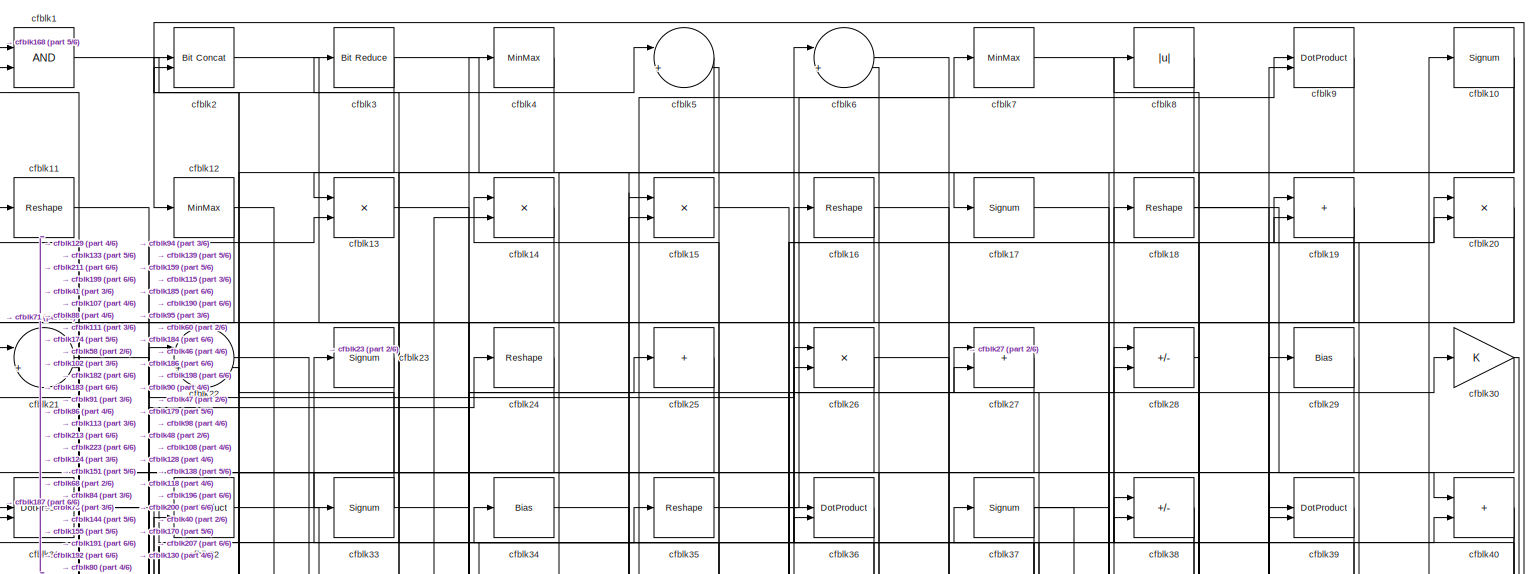
[diagram: root canvas - part 1/6, full width, top band]
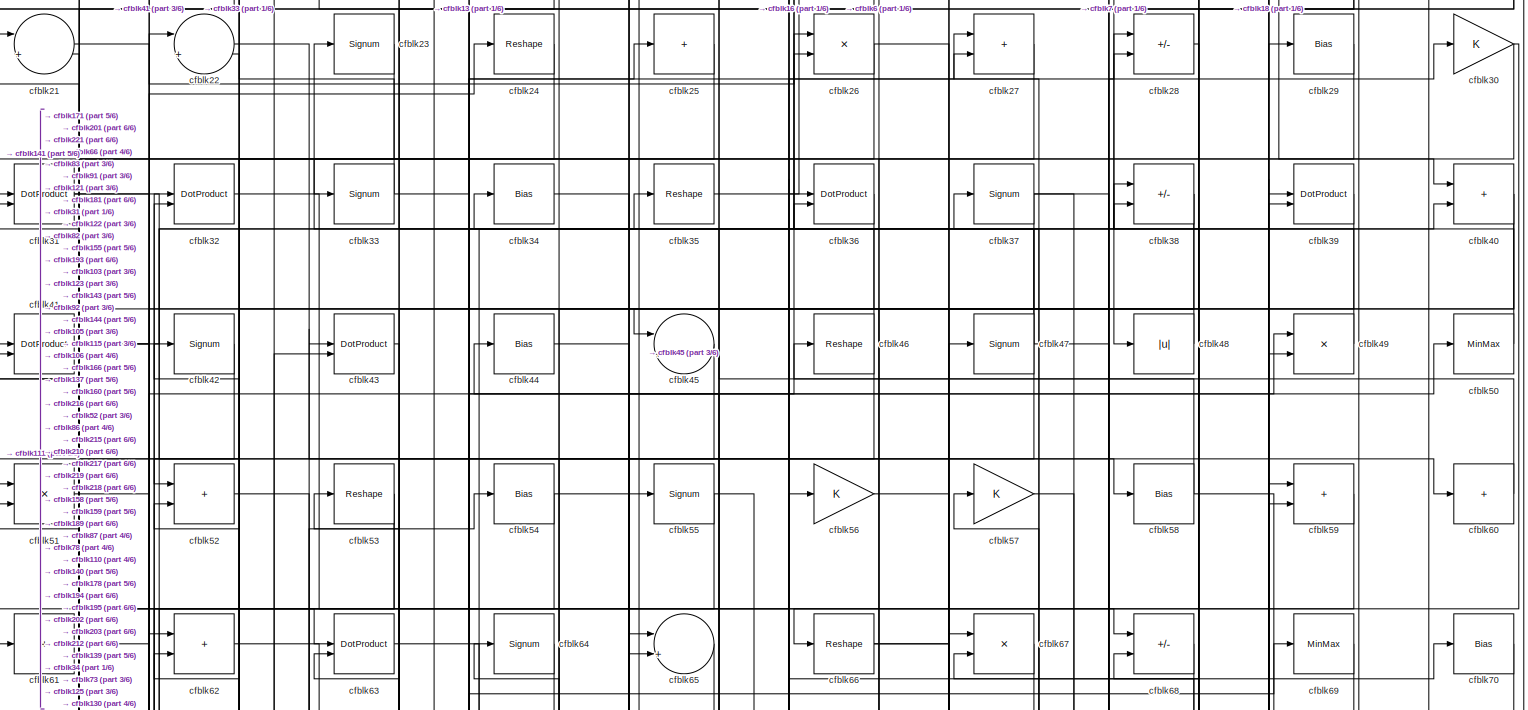
[diagram: root canvas - part 2/6, full width, top band]
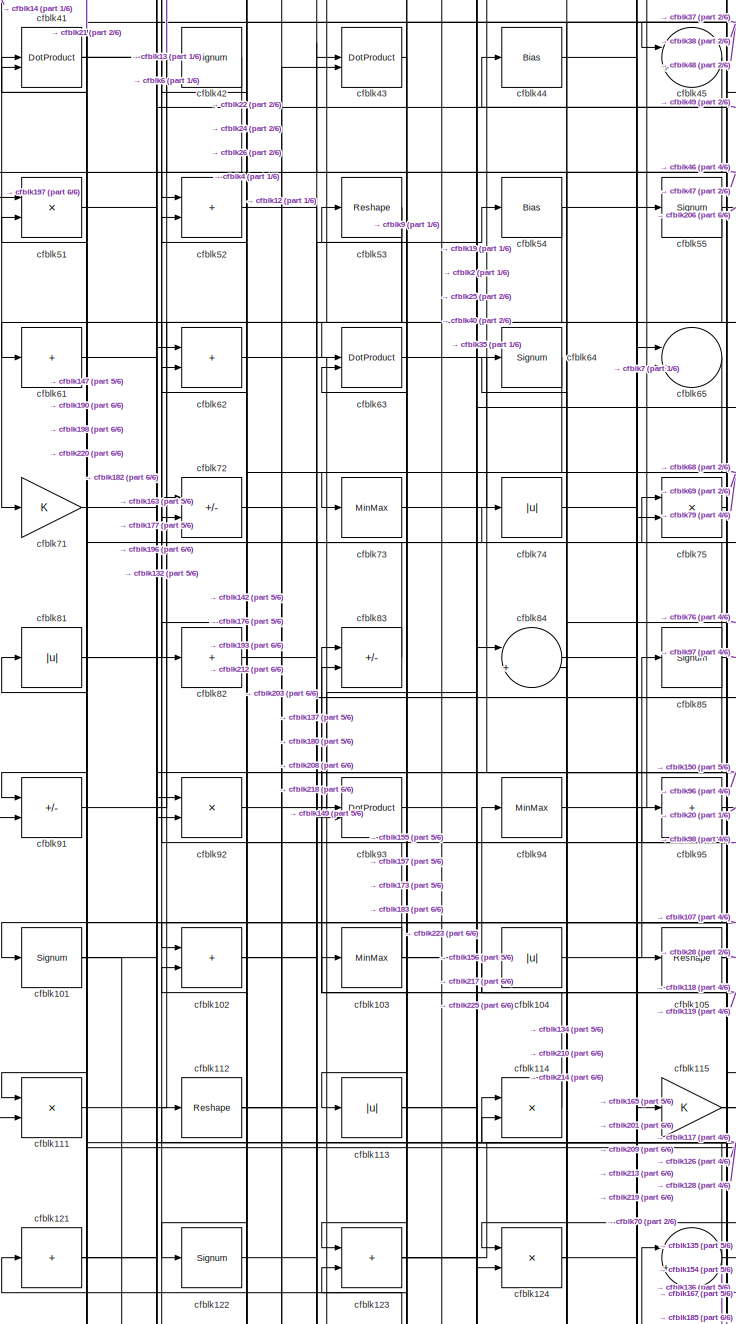
[diagram: root canvas - part 3/6, middle left region]
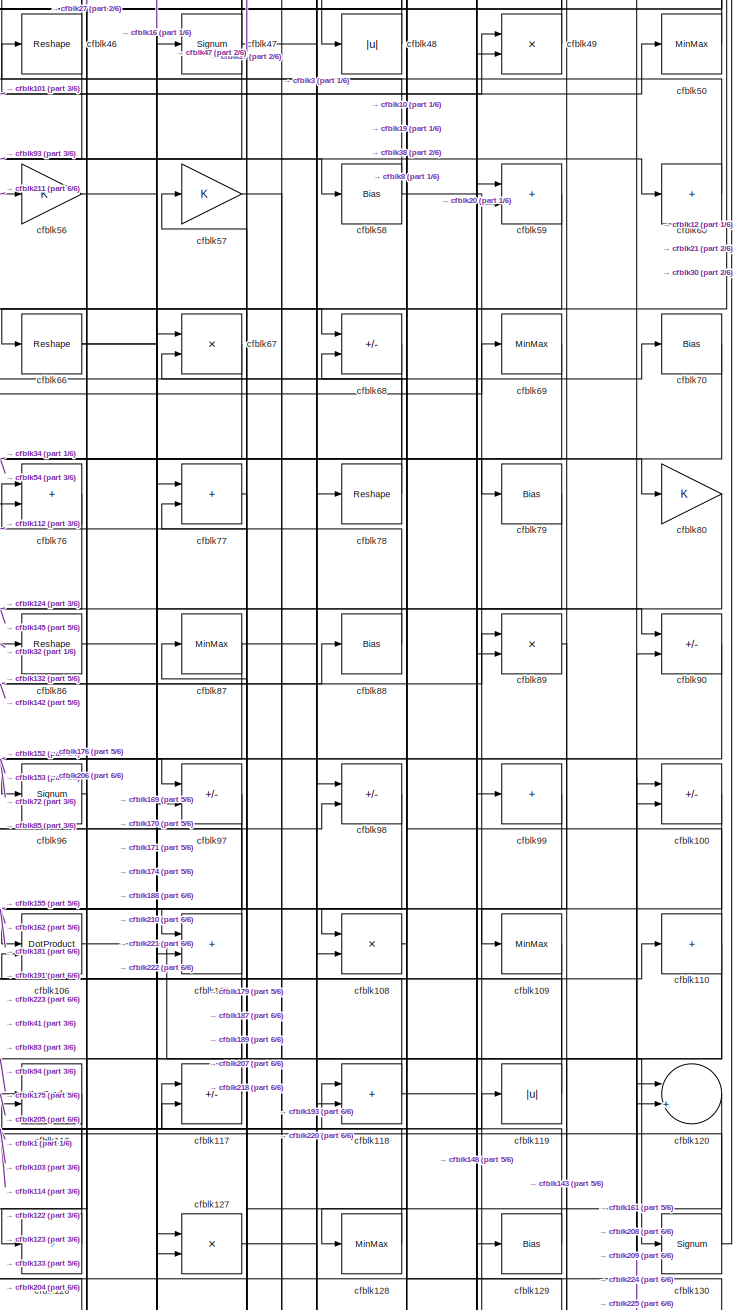
[diagram: root canvas - part 4/6, middle right region]
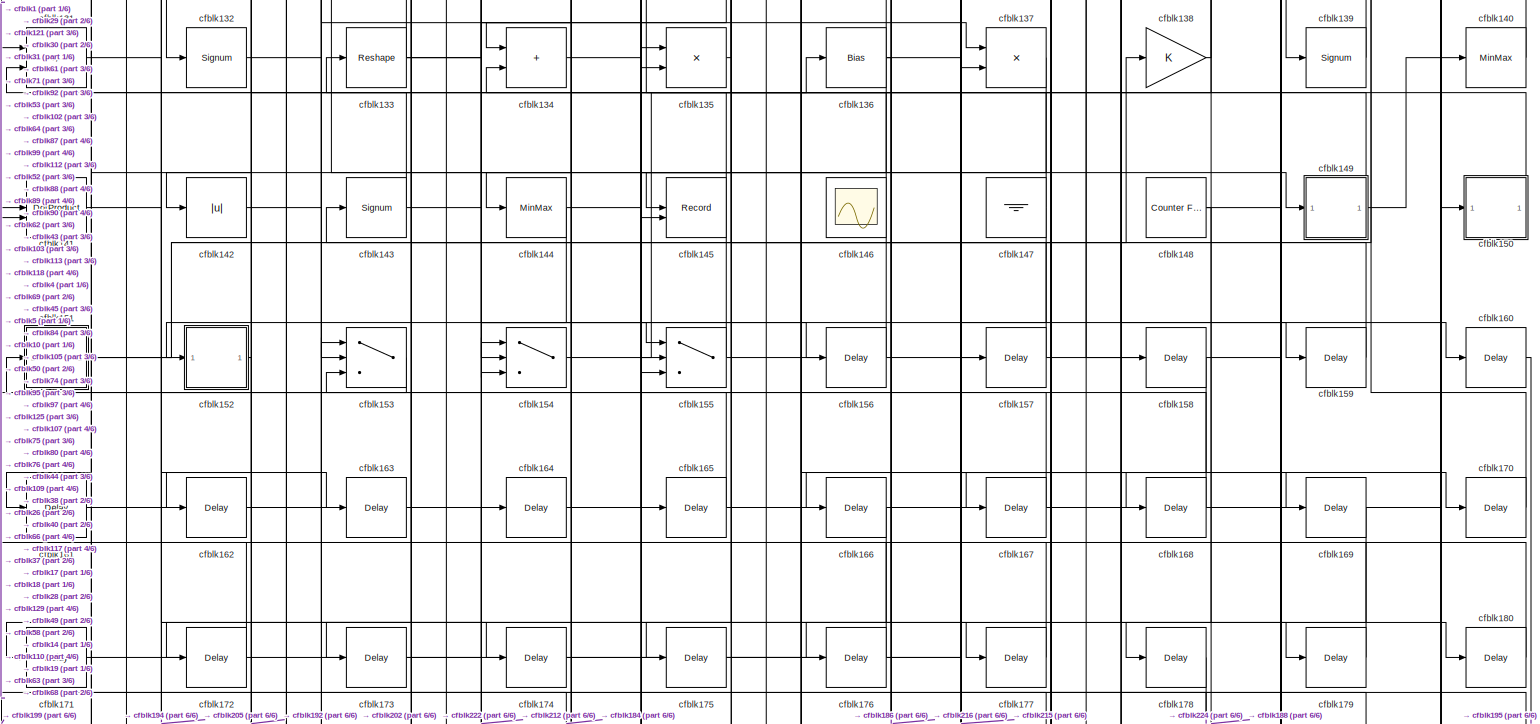
[diagram: root canvas - part 5/6, full width, bottom band]
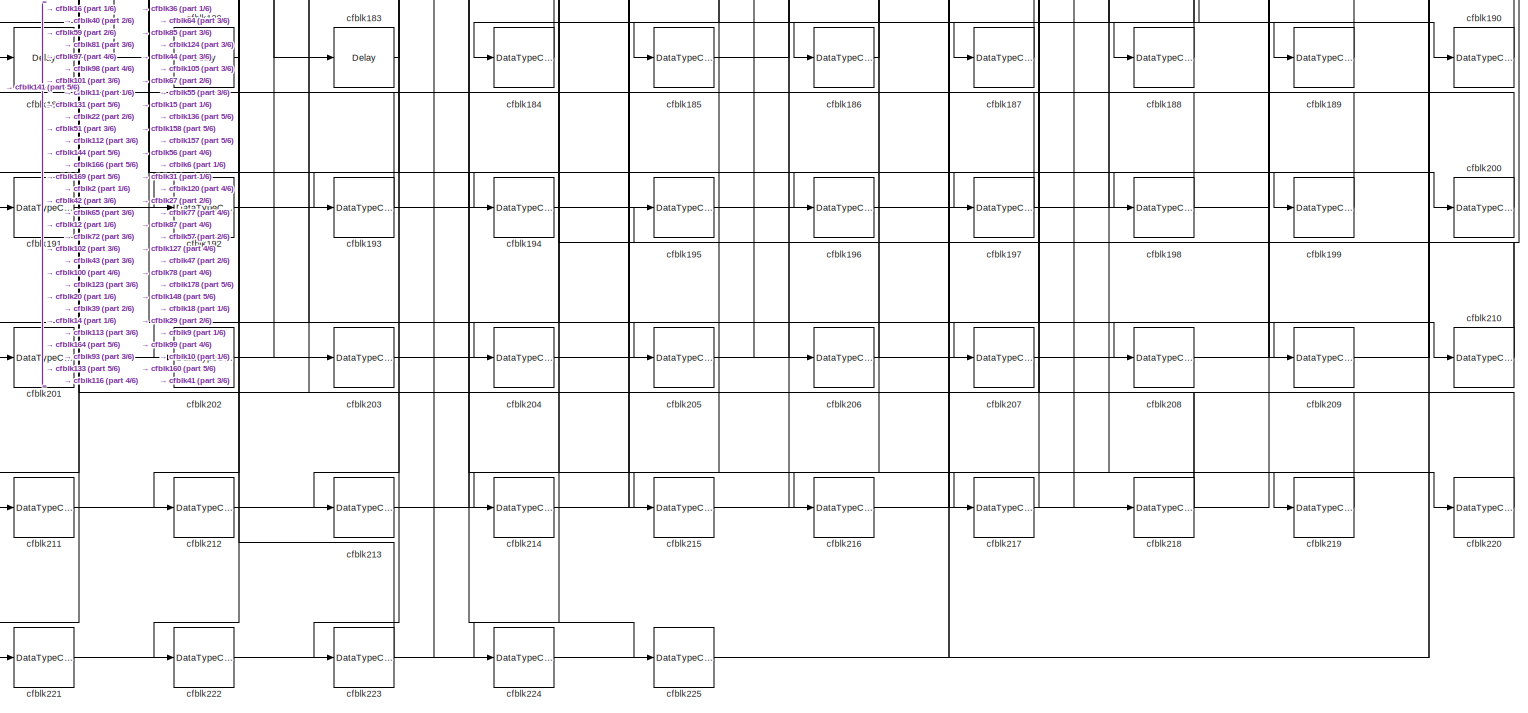
[diagram: root canvas - part 6/6, full width, bottom band]
MODEL slx_f38bf81c6711
KIND model
CONFIG AbsTol = auto
CONFIG EnableMultiTasking = off
CONFIG FixedStep = auto
CONFIG MaxStep = auto
CONFIG MinStep = auto
CONFIG RelTol = 1e-3
CONFIG SampleTimeConstraint = Unconstrained
CONFIG SolverName = VariableStepAuto
CONFIG StartTime = 0.0
CONFIG StopTime = 10.0
BLOCK [Logic] cfblk1
  AllPortsSameDT = off
  OutDataTypeStr = boolean
BLOCK [Signum] cfblk10
BLOCK [Sum] cfblk100
  IconShape = rectangular
  Inputs = +-
BLOCK [Signum] cfblk101
BLOCK [Sum] cfblk102
  IconShape = rectangular
BLOCK [MinMax] cfblk103
BLOCK [Abs] cfblk104
  SaturateOnIntegerOverflow = off
BLOCK [Reshape] cfblk105
BLOCK [DotProduct] cfblk106
  OutDataTypeStr = Inherit: Inherit via internal rule
BLOCK [Sum] cfblk107
  IconShape = rectangular
BLOCK [Product] cfblk108
  Inputs = */
  RndMeth = Zero
  SaturateOnIntegerOverflow = on
BLOCK [MinMax] cfblk109
BLOCK [Reshape] cfblk11
BLOCK [Sum] cfblk110
  IconShape = rectangular
  Inputs = +
BLOCK [Product] cfblk111
  Inputs = */
  RndMeth = Zero
  SaturateOnIntegerOverflow = on
BLOCK [Reshape] cfblk112
BLOCK [Abs] cfblk113
  SaturateOnIntegerOverflow = off
BLOCK [Product] cfblk114
  Inputs = */
  RndMeth = Zero
  SaturateOnIntegerOverflow = on
BLOCK [Gain] cfblk115
BLOCK [DotProduct] cfblk116
  OutDataTypeStr = Inherit: Inherit via internal rule
BLOCK [Sum] cfblk117
  IconShape = rectangular
  Inputs = +-
BLOCK [Sum] cfblk118
  IconShape = rectangular
BLOCK [Abs] cfblk119
  SaturateOnIntegerOverflow = off
BLOCK [MinMax] cfblk12
BLOCK [Sum] cfblk120
  Inputs = |++
BLOCK [Sum] cfblk121
  IconShape = rectangular
  Inputs = +
BLOCK [Signum] cfblk122
BLOCK [Sum] cfblk123
  IconShape = rectangular
BLOCK [Product] cfblk124
  Inputs = */
  RndMeth = Zero
  SaturateOnIntegerOverflow = on
BLOCK [Sum] cfblk125
  Inputs = |++
BLOCK [Sum] cfblk126
  IconShape = rectangular
  Inputs = +
BLOCK [Product] cfblk127
  Inputs = */
  RndMeth = Zero
  SaturateOnIntegerOverflow = on
BLOCK [MinMax] cfblk128
BLOCK [Bias] cfblk129
  Bias = 0.0
  SaturateOnIntegerOverflow = off
BLOCK [Product] cfblk13
  Inputs = */
  RndMeth = Zero
  SaturateOnIntegerOverflow = on
BLOCK [Signum] cfblk130
BLOCK [Sum] cfblk131
  IconShape = rectangular
  Inputs = +-
BLOCK [Signum] cfblk132
BLOCK [Reshape] cfblk133
BLOCK [Sum] cfblk134
  IconShape = rectangular
BLOCK [Product] cfblk135
  Inputs = */
  RndMeth = Zero
  SaturateOnIntegerOverflow = on
BLOCK [Bias] cfblk136
  Bias = 0.0
  SaturateOnIntegerOverflow = off
BLOCK [Product] cfblk137
  Inputs = */
  RndMeth = Zero
  SaturateOnIntegerOverflow = on
BLOCK [Gain] cfblk138
BLOCK [Signum] cfblk139
BLOCK [Product] cfblk14
  Inputs = */
  RndMeth = Zero
  SaturateOnIntegerOverflow = on
BLOCK [MinMax] cfblk140
BLOCK [DotProduct] cfblk141
  OutDataTypeStr = Inherit: Inherit via internal rule
BLOCK [Abs] cfblk142
  SaturateOnIntegerOverflow = off
BLOCK [Signum] cfblk143
BLOCK [MinMax] cfblk144
BLOCK [Record] cfblk145
  CompatibilityTag = XY
  FileSettingsInternal = {"entries":[{"content":{"excelSettings":{"content":{},"type":"Streamout.ExcelSettings"}},"type":"Streamout.FileSettingStorage","uuid":""}],"packageUris":["http:\/\/schema.mathworks.com\/mf0\/streamout_blocks\/R2020a"],"version":"1.0"}
  Layout = [1 1]
  SignalsInternal = {"entries":[{"content":{"signals":[{"content":{"blockPath":[],"dimensions":[1],"domain":"","lineColor":"#a2142f","plots":[1],"port":1,"signalID":6095,"signalName":"XY Graph:1"},"type":"RecordBlkView.Signal","uuid":""},{"content":{"blockPath":[],"dimensions":[1],"domain":"","lineColor":"#139fff","plots":[1],"port":2,"signalID":6098,"signalName":"XY Graph:2"},"type":"RecordBlkView.Signal","uuid":""}...<+146ch>
  VisualizationBindings = {"xyplotplugin":{"info":[{"series":[{"bindingParametersList":[{"parameter":"X-Axis","signalID":6095,"signalName":"XY Graph:1"},{"parameter":"Y-Axis","signalID":6098,"signalName":"XY Graph:2"}],"seriesID":13059}],"subplotID":1}]}}
  st = -1
BLOCK [Scope] cfblk146
  Floating = on
  NumInputPorts = 1
  ScopeSpecificationString = Simulink.scopes.TimeScopeBlockCfg('CurrentConfiguration', extmgr.ConfigurationSet(extmgr.Configuration('Core','General UI',true,'FigureColor',[0.156862745098039 0.156862745098039 0.156862745098039]),extmgr.Configuration('Core','Source UI',true),extmgr.Configuration('Sources','WiredSimulink',true,'DataLoggingVariableName','ScopeData1','DataLoggingSaveFormat','StructureWithTime','DataLoggingLimitDat...<+2713ch>
BLOCK [Ground] cfblk147
BLOCK [Reference] cfblk148  REF=hdlsllib/Sources/Counter
Free-Running
  SourceBlock = hdlsllib/Sources/Counter\nFree-Running
  SourceType = Counter Free-Running
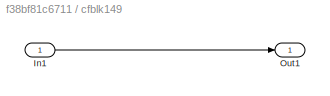
BLOCK [SubSystem] cfblk149
  LibrarySourceBlock = hdlsllib/Ports &\nSubsystems/Subsystem
BLOCK [Inport] cfblk149/In1
BLOCK [Outport] cfblk149/Out1
BLOCK [Product] cfblk15
  Inputs = */
  RndMeth = Zero
  SaturateOnIntegerOverflow = on
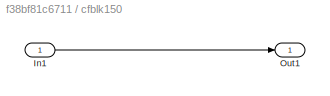
BLOCK [SubSystem] cfblk150
  LibrarySourceBlock = hdlsllib/Ports &\nSubsystems/Subsystem
BLOCK [Inport] cfblk150/In1
BLOCK [Outport] cfblk150/Out1
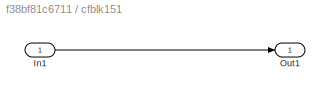
BLOCK [SubSystem] cfblk151
  LibrarySourceBlock = hdlsllib/Ports &\nSubsystems/Subsystem
BLOCK [Inport] cfblk151/In1
BLOCK [Outport] cfblk151/Out1
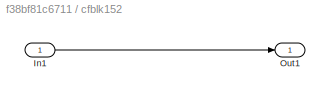
BLOCK [SubSystem] cfblk152
  LibrarySourceBlock = hdlsllib/Ports &\nSubsystems/Subsystem
BLOCK [Inport] cfblk152/In1
BLOCK [Outport] cfblk152/Out1
BLOCK [Switch] cfblk153
  InputSameDT = off
  SaturateOnIntegerOverflow = off
BLOCK [Switch] cfblk154
  InputSameDT = off
  SaturateOnIntegerOverflow = off
BLOCK [Switch] cfblk155
  InputSameDT = off
  SaturateOnIntegerOverflow = off
BLOCK [Delay] cfblk156
  InputPortMap = u0
  SampleTime = 1
BLOCK [Delay] cfblk157
  InputPortMap = u0
  SampleTime = 1
BLOCK [Delay] cfblk158
  InputPortMap = u0
  SampleTime = 1
BLOCK [Delay] cfblk159
  InputPortMap = u0
  SampleTime = 1
BLOCK [Reshape] cfblk16
BLOCK [Delay] cfblk160
  InputPortMap = u0
  SampleTime = 1
BLOCK [Delay] cfblk161
  InputPortMap = u0
  SampleTime = 1
BLOCK [Delay] cfblk162
  InputPortMap = u0
  SampleTime = 1
BLOCK [Delay] cfblk163
  InputPortMap = u0
  SampleTime = 1
BLOCK [Delay] cfblk164
  InputPortMap = u0
  SampleTime = 1
BLOCK [Delay] cfblk165
  InputPortMap = u0
  SampleTime = 1
BLOCK [Delay] cfblk166
  InputPortMap = u0
  SampleTime = 1
BLOCK [Delay] cfblk167
  InputPortMap = u0
  SampleTime = 1
BLOCK [Delay] cfblk168
  InputPortMap = u0
  SampleTime = 1
BLOCK [Delay] cfblk169
  InputPortMap = u0
  SampleTime = 1
BLOCK [Signum] cfblk17
BLOCK [Delay] cfblk170
  InputPortMap = u0
  SampleTime = 1
BLOCK [Delay] cfblk171
  InputPortMap = u0
  SampleTime = 1
BLOCK [Delay] cfblk172
  InputPortMap = u0
  SampleTime = 1
BLOCK [Delay] cfblk173
  InputPortMap = u0
  SampleTime = 1
BLOCK [Delay] cfblk174
  InputPortMap = u0
  SampleTime = 1
BLOCK [Delay] cfblk175
  InputPortMap = u0
  SampleTime = 1
BLOCK [Delay] cfblk176
  InputPortMap = u0
  SampleTime = 1
BLOCK [Delay] cfblk177
  InputPortMap = u0
  SampleTime = 1
BLOCK [Delay] cfblk178
  InputPortMap = u0
  SampleTime = 1
BLOCK [Delay] cfblk179
  InputPortMap = u0
  SampleTime = 1
BLOCK [Reshape] cfblk18
BLOCK [Delay] cfblk180
  InputPortMap = u0
  SampleTime = 1
BLOCK [Delay] cfblk181
  InputPortMap = u0
  SampleTime = 1
BLOCK [Delay] cfblk182
  InputPortMap = u0
  SampleTime = 1
BLOCK [Delay] cfblk183
  InputPortMap = u0
  SampleTime = 1
BLOCK [DataTypeConversion] cfblk184
  OutDataTypeStr = uint8
  RndMeth = Floor
  SaturateOnIntegerOverflow = off
BLOCK [DataTypeConversion] cfblk185
  OutDataTypeStr = uint8
  RndMeth = Floor
  SaturateOnIntegerOverflow = off
BLOCK [DataTypeConversion] cfblk186
  OutDataTypeStr = uint8
  RndMeth = Floor
  SaturateOnIntegerOverflow = off
BLOCK [DataTypeConversion] cfblk187
  OutDataTypeStr = uint8
  RndMeth = Floor
  SaturateOnIntegerOverflow = off
BLOCK [DataTypeConversion] cfblk188
  OutDataTypeStr = uint8
  RndMeth = Floor
  SaturateOnIntegerOverflow = off
BLOCK [DataTypeConversion] cfblk189
  OutDataTypeStr = uint8
  RndMeth = Floor
  SaturateOnIntegerOverflow = off
BLOCK [Sum] cfblk19
  IconShape = rectangular
BLOCK [DataTypeConversion] cfblk190
  OutDataTypeStr = uint8
  RndMeth = Floor
  SaturateOnIntegerOverflow = off
BLOCK [DataTypeConversion] cfblk191
  OutDataTypeStr = uint8
  RndMeth = Floor
  SaturateOnIntegerOverflow = off
BLOCK [DataTypeConversion] cfblk192
  OutDataTypeStr = uint8
  RndMeth = Floor
  SaturateOnIntegerOverflow = off
BLOCK [DataTypeConversion] cfblk193
  RndMeth = Floor
  SaturateOnIntegerOverflow = off
BLOCK [DataTypeConversion] cfblk194
  OutDataTypeStr = uint8
  RndMeth = Floor
  SaturateOnIntegerOverflow = off
BLOCK [DataTypeConversion] cfblk195
  OutDataTypeStr = uint8
  RndMeth = Floor
  SaturateOnIntegerOverflow = off
BLOCK [DataTypeConversion] cfblk196
  OutDataTypeStr = uint8
  RndMeth = Floor
  SaturateOnIntegerOverflow = off
BLOCK [DataTypeConversion] cfblk197
  OutDataTypeStr = uint8
  RndMeth = Floor
  SaturateOnIntegerOverflow = off
BLOCK [DataTypeConversion] cfblk198
  OutDataTypeStr = uint8
  RndMeth = Floor
  SaturateOnIntegerOverflow = off
BLOCK [DataTypeConversion] cfblk199
  OutDataTypeStr = uint8
  RndMeth = Floor
  SaturateOnIntegerOverflow = off
BLOCK [Reference] cfblk2  REF=hdlsllib/Logic and Bit
Operations/Bit Concat
  SourceBlock = hdlsllib/Logic and Bit\nOperations/Bit Concat
  SourceType = Bit Concat
BLOCK [Product] cfblk20
  Inputs = */
  RndMeth = Zero
  SaturateOnIntegerOverflow = on
BLOCK [DataTypeConversion] cfblk200
  OutDataTypeStr = uint8
  RndMeth = Floor
  SaturateOnIntegerOverflow = off
BLOCK [DataTypeConversion] cfblk201
  OutDataTypeStr = uint8
  RndMeth = Floor
  SaturateOnIntegerOverflow = off
BLOCK [DataTypeConversion] cfblk202
  OutDataTypeStr = uint8
  RndMeth = Floor
  SaturateOnIntegerOverflow = off
BLOCK [DataTypeConversion] cfblk203
  OutDataTypeStr = uint8
  RndMeth = Floor
  SaturateOnIntegerOverflow = off
BLOCK [DataTypeConversion] cfblk204
  OutDataTypeStr = uint8
  RndMeth = Floor
  SaturateOnIntegerOverflow = off
BLOCK [DataTypeConversion] cfblk205
  OutDataTypeStr = uint8
  RndMeth = Floor
  SaturateOnIntegerOverflow = off
BLOCK [DataTypeConversion] cfblk206
  OutDataTypeStr = uint8
  RndMeth = Floor
  SaturateOnIntegerOverflow = off
BLOCK [DataTypeConversion] cfblk207
  OutDataTypeStr = uint8
  RndMeth = Floor
  SaturateOnIntegerOverflow = off
BLOCK [DataTypeConversion] cfblk208
  OutDataTypeStr = uint8
  RndMeth = Floor
  SaturateOnIntegerOverflow = off
BLOCK [DataTypeConversion] cfblk209
  OutDataTypeStr = uint8
  RndMeth = Floor
  SaturateOnIntegerOverflow = off
BLOCK [Sum] cfblk21
  Inputs = |++
BLOCK [DataTypeConversion] cfblk210
  RndMeth = Floor
  SaturateOnIntegerOverflow = off
BLOCK [DataTypeConversion] cfblk211
  OutDataTypeStr = uint8
  RndMeth = Floor
  SaturateOnIntegerOverflow = off
BLOCK [DataTypeConversion] cfblk212
  RndMeth = Floor
  SaturateOnIntegerOverflow = off
BLOCK [DataTypeConversion] cfblk213
  OutDataTypeStr = uint8
  RndMeth = Floor
  SaturateOnIntegerOverflow = off
BLOCK [DataTypeConversion] cfblk214
  OutDataTypeStr = uint8
  RndMeth = Floor
  SaturateOnIntegerOverflow = off
BLOCK [DataTypeConversion] cfblk215
  OutDataTypeStr = uint8
  RndMeth = Floor
  SaturateOnIntegerOverflow = off
BLOCK [DataTypeConversion] cfblk216
  OutDataTypeStr = uint8
  RndMeth = Floor
  SaturateOnIntegerOverflow = off
BLOCK [DataTypeConversion] cfblk217
  OutDataTypeStr = uint8
  RndMeth = Floor
  SaturateOnIntegerOverflow = off
BLOCK [DataTypeConversion] cfblk218
  RndMeth = Floor
  SaturateOnIntegerOverflow = off
BLOCK [DataTypeConversion] cfblk219
  OutDataTypeStr = uint8
  RndMeth = Floor
  SaturateOnIntegerOverflow = off
BLOCK [Sum] cfblk22
  Inputs = |++
BLOCK [DataTypeConversion] cfblk220
  OutDataTypeStr = uint8
  RndMeth = Floor
  SaturateOnIntegerOverflow = off
BLOCK [DataTypeConversion] cfblk221
  OutDataTypeStr = uint8
  RndMeth = Floor
  SaturateOnIntegerOverflow = off
BLOCK [DataTypeConversion] cfblk222
  OutDataTypeStr = uint8
  RndMeth = Floor
  SaturateOnIntegerOverflow = off
BLOCK [DataTypeConversion] cfblk223
  RndMeth = Floor
  SaturateOnIntegerOverflow = off
BLOCK [DataTypeConversion] cfblk224
  OutDataTypeStr = uint8
  RndMeth = Floor
  SaturateOnIntegerOverflow = off
BLOCK [DataTypeConversion] cfblk225
  OutDataTypeStr = uint8
  RndMeth = Floor
  SaturateOnIntegerOverflow = off
BLOCK [Signum] cfblk23
BLOCK [Reshape] cfblk24
BLOCK [Sum] cfblk25
  IconShape = rectangular
  Inputs = +
BLOCK [Product] cfblk26
  Inputs = */
  RndMeth = Zero
  SaturateOnIntegerOverflow = on
BLOCK [Sum] cfblk27
  IconShape = rectangular
BLOCK [Sum] cfblk28
  IconShape = rectangular
  Inputs = +-
BLOCK [Bias] cfblk29
  Bias = 0.0
  SaturateOnIntegerOverflow = off
BLOCK [Reference] cfblk3  REF=hdlsllib/Logic and Bit
Operations/Bit Reduce
  SourceBlock = hdlsllib/Logic and Bit\nOperations/Bit Reduce
  SourceType = Bit Reduce
BLOCK [Gain] cfblk30
BLOCK [DotProduct] cfblk31
  OutDataTypeStr = Inherit: Inherit via internal rule
BLOCK [DotProduct] cfblk32
  OutDataTypeStr = Inherit: Inherit via internal rule
BLOCK [Signum] cfblk33
BLOCK [Bias] cfblk34
  Bias = 0.0
  SaturateOnIntegerOverflow = off
BLOCK [Reshape] cfblk35
BLOCK [DotProduct] cfblk36
  OutDataTypeStr = Inherit: Inherit via internal rule
BLOCK [Signum] cfblk37
BLOCK [Sum] cfblk38
  IconShape = rectangular
  Inputs = +-
BLOCK [DotProduct] cfblk39
  OutDataTypeStr = Inherit: Inherit via internal rule
BLOCK [MinMax] cfblk4
BLOCK [Sum] cfblk40
  IconShape = rectangular
BLOCK [DotProduct] cfblk41
  OutDataTypeStr = Inherit: Inherit via internal rule
BLOCK [Signum] cfblk42
BLOCK [DotProduct] cfblk43
  OutDataTypeStr = Inherit: Inherit via internal rule
BLOCK [Bias] cfblk44
  Bias = 0.0
  SaturateOnIntegerOverflow = off
BLOCK [Sum] cfblk45
  Inputs = |++
BLOCK [Reshape] cfblk46
BLOCK [Signum] cfblk47
BLOCK [Abs] cfblk48
  SaturateOnIntegerOverflow = off
BLOCK [Product] cfblk49
  Inputs = */
  RndMeth = Zero
  SaturateOnIntegerOverflow = on
BLOCK [Sum] cfblk5
  Inputs = |++
BLOCK [MinMax] cfblk50
BLOCK [Product] cfblk51
  Inputs = */
  RndMeth = Zero
  SaturateOnIntegerOverflow = on
BLOCK [Sum] cfblk52
  IconShape = rectangular
BLOCK [Reshape] cfblk53
BLOCK [Bias] cfblk54
  Bias = 0.0
  SaturateOnIntegerOverflow = off
BLOCK [Signum] cfblk55
BLOCK [Gain] cfblk56
BLOCK [Gain] cfblk57
BLOCK [Bias] cfblk58
  Bias = 0.0
  SaturateOnIntegerOverflow = off
BLOCK [Sum] cfblk59
  IconShape = rectangular
BLOCK [Sum] cfblk6
  Inputs = |++
BLOCK [Sum] cfblk60
  IconShape = rectangular
  Inputs = +
BLOCK [Sum] cfblk61
  IconShape = rectangular
  Inputs = +
BLOCK [Sum] cfblk62
  IconShape = rectangular
BLOCK [DotProduct] cfblk63
  OutDataTypeStr = Inherit: Inherit via internal rule
BLOCK [Signum] cfblk64
BLOCK [Sum] cfblk65
  Inputs = |++
BLOCK [Reshape] cfblk66
BLOCK [Product] cfblk67
  Inputs = */
  RndMeth = Zero
  SaturateOnIntegerOverflow = on
BLOCK [Sum] cfblk68
  IconShape = rectangular
  Inputs = +-
BLOCK [MinMax] cfblk69
BLOCK [MinMax] cfblk7
BLOCK [Bias] cfblk70
  Bias = 0.0
  SaturateOnIntegerOverflow = off
BLOCK [Gain] cfblk71
BLOCK [Sum] cfblk72
  IconShape = rectangular
  Inputs = +-
BLOCK [MinMax] cfblk73
BLOCK [Abs] cfblk74
  SaturateOnIntegerOverflow = off
BLOCK [Product] cfblk75
  Inputs = */
  RndMeth = Zero
  SaturateOnIntegerOverflow = on
BLOCK [Sum] cfblk76
  IconShape = rectangular
BLOCK [Sum] cfblk77
  IconShape = rectangular
BLOCK [Reshape] cfblk78
BLOCK [Bias] cfblk79
  Bias = 0.0
  SaturateOnIntegerOverflow = off
BLOCK [Abs] cfblk8
  SaturateOnIntegerOverflow = off
BLOCK [Gain] cfblk80
BLOCK [Abs] cfblk81
  SaturateOnIntegerOverflow = off
BLOCK [Sum] cfblk82
  IconShape = rectangular
  Inputs = +
BLOCK [Sum] cfblk83
  IconShape = rectangular
  Inputs = +-
BLOCK [Sum] cfblk84
  Inputs = |++
BLOCK [Signum] cfblk85
BLOCK [Reshape] cfblk86
BLOCK [MinMax] cfblk87
BLOCK [Bias] cfblk88
  Bias = 0.0
  SaturateOnIntegerOverflow = off
BLOCK [Product] cfblk89
  Inputs = */
  RndMeth = Zero
  SaturateOnIntegerOverflow = on
BLOCK [DotProduct] cfblk9
  OutDataTypeStr = Inherit: Inherit via internal rule
BLOCK [Sum] cfblk90
  IconShape = rectangular
  Inputs = +-
BLOCK [Sum] cfblk91
  IconShape = rectangular
  Inputs = +-
BLOCK [Product] cfblk92
  Inputs = */
  RndMeth = Zero
  SaturateOnIntegerOverflow = on
BLOCK [DotProduct] cfblk93
  OutDataTypeStr = Inherit: Inherit via internal rule
BLOCK [MinMax] cfblk94
BLOCK [Sum] cfblk95
  IconShape = rectangular
  Inputs = +
BLOCK [Signum] cfblk96
BLOCK [Sum] cfblk97
  IconShape = rectangular
  Inputs = +-
BLOCK [Sum] cfblk98
  IconShape = rectangular
  Inputs = +-
BLOCK [Sum] cfblk99
  IconShape = rectangular
  Inputs = +
LINE cfblk100:1 -> cfblk223:1
NET cfblk101:1 -> cfblk182:1, cfblk41:1, cfblk46:1
NET cfblk102:1 -> cfblk208:1, cfblk54:1
NET cfblk103:1 -> cfblk155:1, cfblk22:2, cfblk49:1
LINE cfblk104:1 -> cfblk85:1
NET cfblk105:1 -> cfblk185:1, cfblk28:2
LINE cfblk106:1 -> cfblk130:1
NET cfblk107:1 -> cfblk175:1, cfblk32:1
LINE cfblk108:1 -> cfblk8:1
LINE cfblk109:1 -> cfblk176:1
NET cfblk10:1 -> cfblk108:1, cfblk155:2
NET cfblk110:1 -> cfblk118:2, cfblk143:1, cfblk38:2
LINE cfblk111:1 -> cfblk6:1
NET cfblk112:1 -> cfblk180:1, cfblk43:2, cfblk76:1
NET cfblk113:1 -> cfblk156:1, cfblk217:1
LINE cfblk114:1 -> cfblk83:2
NET cfblk115:1 -> cfblk19:1, cfblk70:1
LINE cfblk116:1 -> cfblk204:1
LINE cfblk117:1 -> cfblk106:2
NET cfblk118:1 -> cfblk20:2, cfblk83:1
LINE cfblk119:1 -> cfblk94:1
LINE cfblk11:1 -> cfblk199:1
LINE cfblk120:1 -> cfblk207:1
NET cfblk121:1 -> cfblk114:2, cfblk24:1
LINE cfblk122:1 -> cfblk119:1
NET cfblk123:1 -> cfblk117:1, cfblk25:1, cfblk98:2
NET cfblk124:1 -> cfblk104:1, cfblk209:1
NET cfblk125:1 -> cfblk154:3, cfblk167:1, cfblk52:2
LINE cfblk126:1 -> cfblk114:1
LINE cfblk127:1 -> cfblk220:1
LINE cfblk128:1 -> cfblk103:1
LINE cfblk129:1 -> cfblk1:2
NET cfblk12:1 -> cfblk183:1, cfblk91:2
NET cfblk130:1 -> cfblk12:1, cfblk21:2
LINE cfblk131:1 -> cfblk194:1
LINE cfblk132:1 -> cfblk89:1
NET cfblk133:1 -> cfblk110:1, cfblk118:1, cfblk31:2
LINE cfblk134:1 -> cfblk105:1
LINE cfblk135:1 -> cfblk75:1
NET cfblk136:1 -> cfblk145:2, cfblk168:1, cfblk216:1, cfblk44:1
LINE cfblk137:1 -> cfblk161:1
LINE cfblk138:1 -> cfblk18:1
LINE cfblk139:1 -> cfblk14:1
LINE cfblk13:1 -> cfblk68:1
LINE cfblk140:1 -> cfblk68:2
LINE cfblk141:1 -> cfblk205:1
LINE cfblk142:1 -> cfblk88:1
NET cfblk143:1 -> cfblk131:2, cfblk69:1
NET cfblk144:1 -> cfblk202:1, cfblk50:1
NET cfblk147:1 -> cfblk121:1, cfblk154:2
NET cfblk148:1 -> cfblk129:1, cfblk188:1
LINE cfblk149/In1:1 -> cfblk149/Out1:1
NET cfblk149:1 -> cfblk140:1, cfblk95:1
LINE cfblk14:1 -> cfblk71:1
LINE cfblk150/In1:1 -> cfblk150/Out1:1
LINE cfblk150:1 -> cfblk62:2
LINE cfblk151/In1:1 -> cfblk151/Out1:1
NET cfblk151:1 -> cfblk138:1, cfblk4:1
LINE cfblk152/In1:1 -> cfblk152/Out1:1
LINE cfblk152:1 -> cfblk172:1
LINE cfblk153:1 -> cfblk151:1
LINE cfblk154:1 -> cfblk136:1
NET cfblk155:1 -> cfblk49:2, cfblk53:1
LINE cfblk156:1 -> cfblk84:2
LINE cfblk157:1 -> cfblk63:2
LINE cfblk158:1 -> cfblk186:1
LINE cfblk159:1 -> cfblk5:2
LINE cfblk15:1 -> cfblk190:1
LINE cfblk160:1 -> cfblk195:1
LINE cfblk161:1 -> cfblk90:2
LINE cfblk162:1 -> cfblk153:1
LINE cfblk163:1 -> cfblk75:2
LINE cfblk164:1 -> cfblk134:2
LINE cfblk165:1 -> cfblk135:1
LINE cfblk166:1 -> cfblk192:1
LINE cfblk167:1 -> cfblk92:1
LINE cfblk168:1 -> cfblk1:1
LINE cfblk169:1 -> cfblk222:1
NET cfblk16:1 -> cfblk211:1, cfblk90:1
LINE cfblk170:1 -> cfblk19:2
LINE cfblk171:1 -> cfblk97:2
LINE cfblk172:1 -> cfblk131:1
LINE cfblk173:1 -> cfblk154:1
LINE cfblk174:1 -> cfblk107:2
LINE cfblk175:1 -> cfblk76:2
LINE cfblk176:1 -> cfblk102:2
LINE cfblk177:1 -> cfblk62:1
LINE cfblk178:1 -> cfblk224:1
LINE cfblk179:1 -> cfblk117:2
LINE cfblk17:1 -> cfblk179:1
LINE cfblk180:1 -> cfblk153:3
LINE cfblk181:1 -> cfblk22:1
LINE cfblk182:1 -> cfblk2:2
LINE cfblk183:1 -> cfblk123:2
LINE cfblk184:1 -> cfblk133:1
LINE cfblk185:1 -> cfblk36:1
LINE cfblk186:1 -> cfblk36:2
LINE cfblk187:1 -> cfblk31:1
LINE cfblk188:1 -> cfblk77:1
LINE cfblk189:1 -> cfblk77:2
NET cfblk18:1 -> cfblk200:1, cfblk40:1
LINE cfblk190:1 -> cfblk41:2
LINE cfblk191:1 -> cfblk15:1
LINE cfblk192:1 -> cfblk15:2
NET cfblk193:1 -> cfblk197:1, cfblk42:1, cfblk78:1
LINE cfblk194:1 -> cfblk39:1
LINE cfblk195:1 -> cfblk39:2
LINE cfblk196:1 -> cfblk9:2
LINE cfblk197:1 -> cfblk51:1
LINE cfblk198:1 -> cfblk51:2
LINE cfblk199:1 -> cfblk141:1
NET cfblk19:1 -> cfblk124:2, cfblk128:1
LINE cfblk1:1 -> cfblk5:1
LINE cfblk200:1 -> cfblk11:1
LINE cfblk201:1 -> cfblk55:1
LINE cfblk202:1 -> cfblk59:1
LINE cfblk203:1 -> cfblk59:2
LINE cfblk204:1 -> cfblk99:1
LINE cfblk205:1 -> cfblk116:1
LINE cfblk206:1 -> cfblk116:2
LINE cfblk207:1 -> cfblk10:1
LINE cfblk208:1 -> cfblk120:1
LINE cfblk209:1 -> cfblk120:2
NET cfblk20:1 -> cfblk108:2, cfblk213:1
NET cfblk210:1 -> cfblk27:2, cfblk64:1
LINE cfblk211:1 -> cfblk56:1
NET cfblk212:1 -> cfblk164:1, cfblk29:1
LINE cfblk213:1 -> cfblk65:1
LINE cfblk214:1 -> cfblk65:2
LINE cfblk215:1 -> cfblk157:1
LINE cfblk216:1 -> cfblk67:1
LINE cfblk217:1 -> cfblk67:2
NET cfblk218:1 -> cfblk43:1, cfblk87:1
LINE cfblk219:1 -> cfblk57:1
LINE cfblk21:1 -> cfblk26:2
LINE cfblk220:1 -> cfblk81:1
LINE cfblk221:1 -> cfblk127:1
LINE cfblk222:1 -> cfblk127:2
NET cfblk223:1 -> cfblk112:1, cfblk14:2
LINE cfblk224:1 -> cfblk100:1
LINE cfblk225:1 -> cfblk100:2
LINE cfblk22:1 -> cfblk60:1
LINE cfblk23:1 -> cfblk33:1
LINE cfblk24:1 -> cfblk122:1
LINE cfblk25:1 -> cfblk91:1
NET cfblk26:1 -> cfblk160:1, cfblk52:1
LINE cfblk27:1 -> cfblk106:1
LINE cfblk28:1 -> cfblk178:1
LINE cfblk29:1 -> cfblk141:2
LINE cfblk2:1 -> cfblk84:1
NET cfblk30:1 -> cfblk171:1, cfblk66:1
NET cfblk31:1 -> cfblk174:1, cfblk58:1
LINE cfblk32:1 -> cfblk86:1
NET cfblk33:1 -> cfblk27:1, cfblk2:1
LINE cfblk34:1 -> cfblk80:1
LINE cfblk35:1 -> cfblk9:1
LINE cfblk36:1 -> cfblk184:1
NET cfblk37:1 -> cfblk158:1, cfblk159:1, cfblk92:2
NET cfblk38:1 -> cfblk166:1, cfblk82:1
LINE cfblk39:1 -> cfblk193:1
NET cfblk3:1 -> cfblk13:1, cfblk98:1
NET cfblk40:1 -> cfblk137:2, cfblk221:1
NET cfblk41:1 -> cfblk107:1, cfblk13:2, cfblk38:1
LINE cfblk42:1 -> cfblk101:1
LINE cfblk43:1 -> cfblk173:1
LINE cfblk44:1 -> cfblk219:1
LINE cfblk45:1 -> cfblk134:1
NET cfblk46:1 -> cfblk3:1, cfblk93:1
NET cfblk47:1 -> cfblk111:2, cfblk189:1, cfblk26:1, cfblk6:2
LINE cfblk48:1 -> cfblk45:1
LINE cfblk49:1 -> cfblk28:1
LINE cfblk4:1 -> cfblk102:1
LINE cfblk50:1 -> cfblk23:1
LINE cfblk51:1 -> cfblk196:1
LINE cfblk52:1 -> cfblk137:1
NET cfblk53:1 -> cfblk132:1, cfblk61:1
NET cfblk54:1 -> cfblk123:1, cfblk79:1
NET cfblk55:1 -> cfblk111:1, cfblk206:1
LINE cfblk56:1 -> cfblk210:1
LINE cfblk57:1 -> cfblk218:1
NET cfblk58:1 -> cfblk139:1, cfblk34:1
LINE cfblk59:1 -> cfblk201:1
LINE cfblk5:1 -> cfblk144:1
LINE cfblk60:1 -> cfblk16:1
LINE cfblk61:1 -> cfblk177:1
LINE cfblk62:1 -> cfblk149:1
LINE cfblk63:1 -> cfblk150:1
LINE cfblk64:1 -> cfblk142:1
LINE cfblk65:1 -> cfblk212:1
NET cfblk66:1 -> cfblk169:1, cfblk170:1
LINE cfblk67:1 -> cfblk215:1
LINE cfblk68:1 -> cfblk125:2
LINE cfblk69:1 -> cfblk73:1
LINE cfblk6:1 -> cfblk198:1
LINE cfblk70:1 -> cfblk125:1
LINE cfblk71:1 -> cfblk163:1
NET cfblk72:1 -> cfblk203:1, cfblk96:1
LINE cfblk73:1 -> cfblk35:1
LINE cfblk74:1 -> cfblk165:1
LINE cfblk75:1 -> cfblk45:2
LINE cfblk76:1 -> cfblk124:1
LINE cfblk77:1 -> cfblk187:1
LINE cfblk78:1 -> cfblk37:1
LINE cfblk79:1 -> cfblk89:2
LINE cfblk7:1 -> cfblk48:1
LINE cfblk80:1 -> cfblk145:1
NET cfblk81:1 -> cfblk72:1, cfblk93:2
LINE cfblk82:1 -> cfblk74:1
LINE cfblk83:1 -> cfblk21:1
LINE cfblk84:1 -> cfblk115:1
NET cfblk85:1 -> cfblk214:1, cfblk72:2, cfblk97:1
LINE cfblk86:1 -> cfblk47:1
NET cfblk87:1 -> cfblk152:1, cfblk30:1
LINE cfblk88:1 -> cfblk32:2
LINE cfblk89:1 -> cfblk109:1
LINE cfblk8:1 -> cfblk17:1
LINE cfblk90:1 -> cfblk153:2
LINE cfblk91:1 -> cfblk63:1
LINE cfblk92:1 -> cfblk40:2
LINE cfblk93:1 -> cfblk225:1
LINE cfblk94:1 -> cfblk7:1
NET cfblk95:1 -> cfblk135:2, cfblk20:1
LINE cfblk96:1 -> cfblk126:1
NET cfblk97:1 -> cfblk155:3, cfblk191:1
LINE cfblk98:1 -> cfblk181:1
LINE cfblk99:1 -> cfblk162:1
LINE cfblk9:1 -> cfblk113:1
note: NET lines group one-source signal fan-out (src -> all destinations, sorted); 1:1 wires keep LINE
